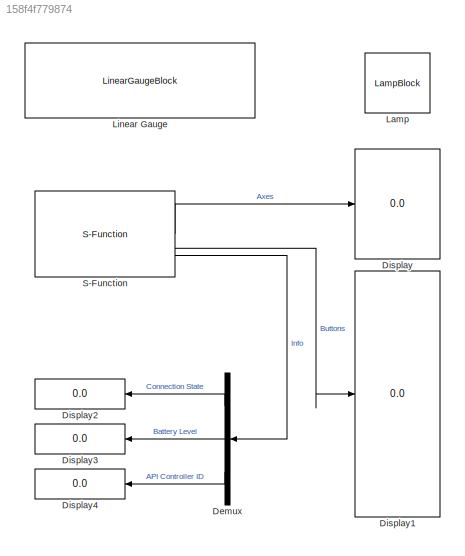
MODEL slx_158f4f779874
KIND model
CONFIG AbsTol = auto
CONFIG EnableMultiTasking = off
CONFIG FixedStep = 0.001
CONFIG MaxStep = auto
CONFIG MinStep = auto
CONFIG RelTol = 1e-3
CONFIG SampleTimeConstraint = Unconstrained
CONFIG SolverName = FixedStepAuto
CONFIG StartTime = 0.0
CONFIG StopTime = 100
BLOCK [Demux] Demux
  Outputs = 3
BLOCK [Display] Display
  Decimation = 1
BLOCK [Display] Display1
  Decimation = 1
BLOCK [Display] Display2
  Decimation = 1
BLOCK [Display] Display3
  Decimation = 1
BLOCK [Display] Display4
  Decimation = 1
BLOCK [LampBlock] Lamp
BLOCK [LinearGaugeBlock] Linear Gauge
  TickInterval = 25
BLOCK [S-Function] S-Function
  EnableBusSupport = off
  FunctionName = XInput_Controller_SFun
  Parameters = 1
  SFcnIsStateOwnerBlock = off
  SFunctionDeploymentMode = off
LINE Demux:1 -> Display2:1
LINE Demux:2 -> Display3:1
LINE Demux:3 -> Display4:1
LINE S-Function:1 -> Display:1
LINE S-Function:2 -> Display1:1
LINE S-Function:3 -> Demux:1
